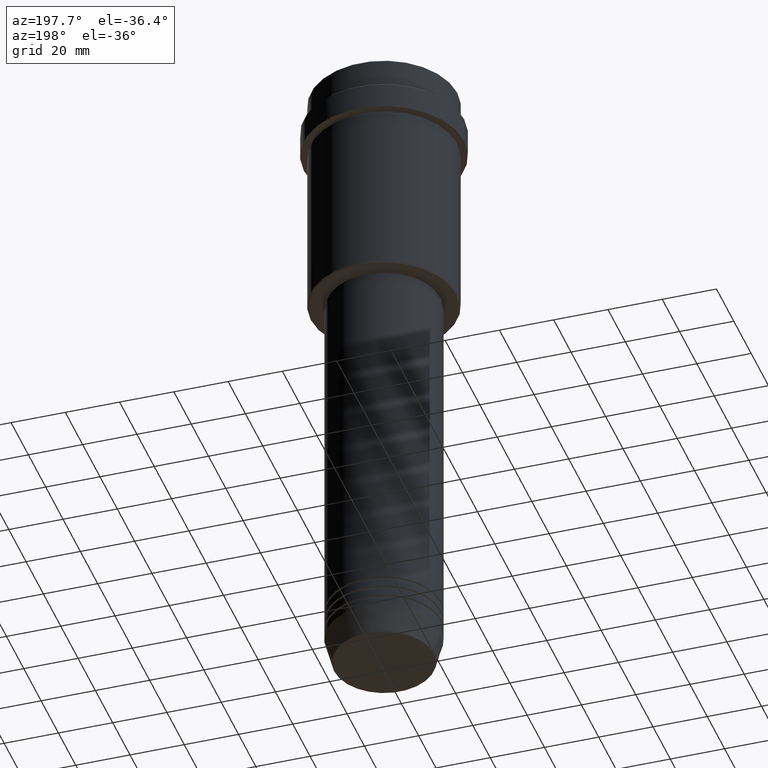
[diagram: clean part render]
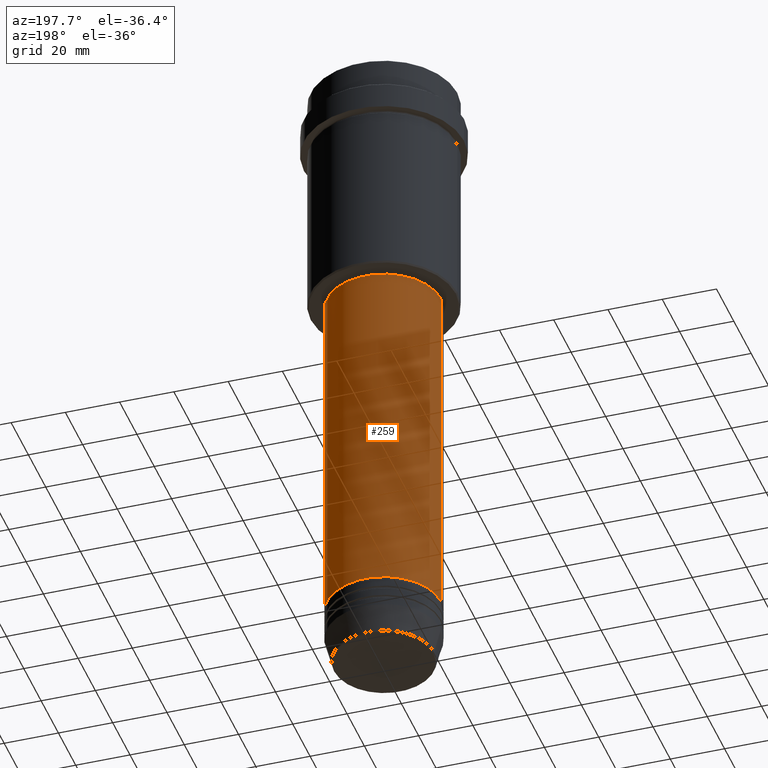
[diagram: same view with one face highlighted and labeled with its STEP entity id]
A machine part, auxiliary view. The second image highlights one B-rep face of the part: STEP entity #259.
In plain terms, the highlighted cylindrical surface (partial cylindrical patch) has radius 21 mm, axis along (-0, -0, 1).
Its self-contained STEP definition (entity closure, byte-faithful):
#4 = CYLINDRICAL_SURFACE ( 'NONE', #40, 21.00000000000000000 ) ;
#35 = LINE ( 'NONE', #368, #514 ) ;
#40 = AXIS2_PLACEMENT_3D ( 'NONE', #421, #881, #1092 ) ;
#49 = EDGE_CURVE ( 'NONE', #1253, #112, #35, .T. ) ;
#75 = CARTESIAN_POINT ( 'NONE',  ( -21.00000000000000000, 2.571758278209441661E-15, -89.00000000000000000 ) ) ;
#112 = VERTEX_POINT ( 'NONE', #75 ) ;
#198 = EDGE_CURVE ( 'NONE', #981, #112, #673, .T. ) ;
#201 = CARTESIAN_POINT ( 'NONE',  ( -21.00000000000000000, 2.571758278209441661E-15, -220.9999999999998863 ) ) ;
#223 = FACE_OUTER_BOUND ( 'NONE', #829, .T. ) ;
#228 = CARTESIAN_POINT ( 'NONE',  ( 0.000000000000000000, 0.000000000000000000, -89.00000000000000000 ) ) ;
#256 = DIRECTION ( 'NONE',  ( -0.000000000000000000, -0.000000000000000000, 1.000000000000000000 ) ) ;
#259 = ADVANCED_FACE ( 'NONE', ( #223 ), #4, .T. ) ;
#308 = ORIENTED_EDGE ( 'NONE', *, *, #329, .T. ) ;
#329 = EDGE_CURVE ( 'NONE', #476, #1253, #609, .T. ) ;
#358 = AXIS2_PLACEMENT_3D ( 'NONE', #228, #1104, #464 ) ;
#368 = CARTESIAN_POINT ( 'NONE',  ( -21.00000000000000000, 2.571758278209441661E-15, 0.000000000000000000 ) ) ;
#421 = CARTESIAN_POINT ( 'NONE',  ( 0.000000000000000000, 0.000000000000000000, 0.000000000000000000 ) ) ;
#464 = DIRECTION ( 'NONE',  ( 1.000000000000000000, 0.000000000000000000, 0.000000000000000000 ) ) ;
#476 = VERTEX_POINT ( 'NONE', #1239 ) ;
#497 = VECTOR ( 'NONE', #1396, 1000.000000000000000 ) ;
#511 = CARTESIAN_POINT ( 'NONE',  ( 0.000000000000000000, 0.000000000000000000, -220.9999999999998863 ) ) ;
#514 = VECTOR ( 'NONE', #256, 1000.000000000000000 ) ;
#545 = DIRECTION ( 'NONE',  ( -0.000000000000000000, -0.000000000000000000, 1.000000000000000000 ) ) ;
#603 = EDGE_CURVE ( 'NONE', #476, #981, #840, .T. ) ;
#609 = CIRCLE ( 'NONE', #956, 21.00000000000000000 ) ;
#673 = CIRCLE ( 'NONE', #358, 21.00000000000000000 ) ;
#732 = ORIENTED_EDGE ( 'NONE', *, *, #198, .F. ) ;
#743 = ORIENTED_EDGE ( 'NONE', *, *, #49, .T. ) ;
#827 = CARTESIAN_POINT ( 'NONE',  ( 21.00000000000000000, 0.000000000000000000, -89.00000000000000000 ) ) ;
#829 = EDGE_LOOP ( 'NONE', ( #308, #743, #732, #987 ) ) ;
#840 = LINE ( 'NONE', #940, #497 ) ;
#881 = DIRECTION ( 'NONE',  ( -0.000000000000000000, -0.000000000000000000, 1.000000000000000000 ) ) ;
#940 = CARTESIAN_POINT ( 'NONE',  ( 21.00000000000000000, 0.000000000000000000, 0.000000000000000000 ) ) ;
#956 = AXIS2_PLACEMENT_3D ( 'NONE', #511, #545, #963 ) ;
#963 = DIRECTION ( 'NONE',  ( 1.000000000000000000, 0.000000000000000000, 0.000000000000000000 ) ) ;
#981 = VERTEX_POINT ( 'NONE', #827 ) ;
#987 = ORIENTED_EDGE ( 'NONE', *, *, #603, .F. ) ;
#1092 = DIRECTION ( 'NONE',  ( 1.000000000000000000, 0.000000000000000000, 0.000000000000000000 ) ) ;
#1104 = DIRECTION ( 'NONE',  ( -0.000000000000000000, -0.000000000000000000, 1.000000000000000000 ) ) ;
#1239 = CARTESIAN_POINT ( 'NONE',  ( 21.00000000000000000, 0.000000000000000000, -220.9999999999998863 ) ) ;
#1253 = VERTEX_POINT ( 'NONE', #201 ) ;
#1396 = DIRECTION ( 'NONE',  ( -0.000000000000000000, -0.000000000000000000, 1.000000000000000000 ) ) ;